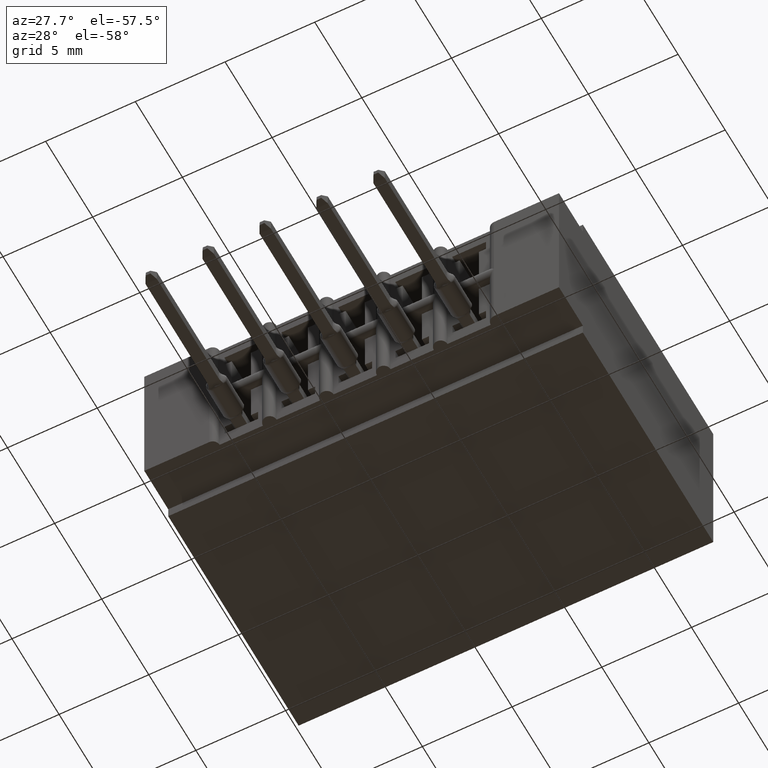
[diagram: clean part render]
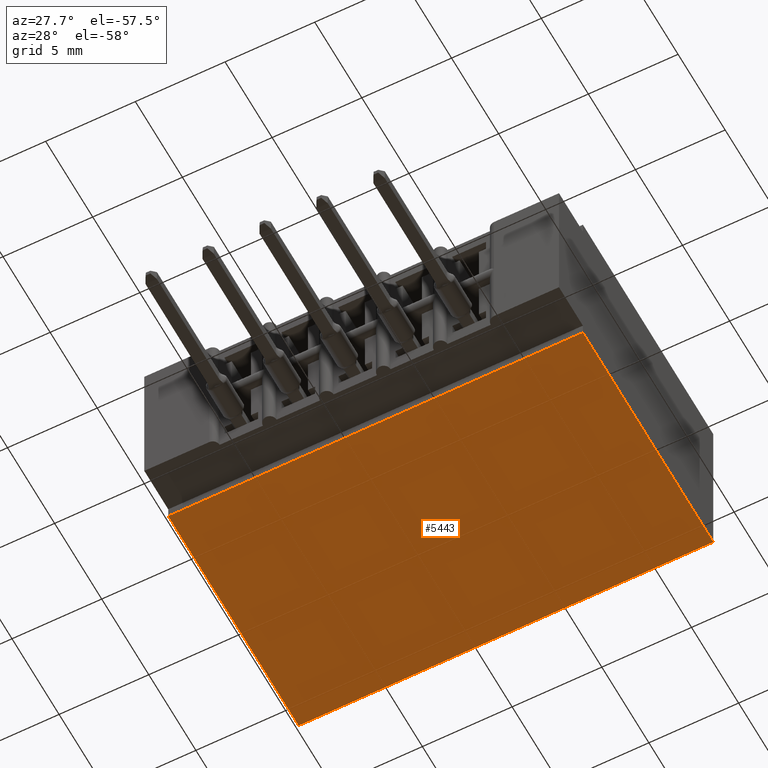
[diagram: same view with one face highlighted and labeled with its STEP entity id]
A machine part, auxiliary view. The second image highlights one B-rep face of the part: STEP entity #5443.
In plain terms, the highlighted planar face has unit normal (0, 0, 1).
Its self-contained STEP definition (entity closure, byte-faithful):
#358 = LINE ( 'NONE', #3531, #3460 ) ;
#1164 = DIRECTION ( 'NONE',  ( 1.000000000000000000, 0.0000000000000000000, -0.0000000000000000000 ) ) ;
#1405 = EDGE_CURVE ( 'NONE', #10196, #4060, #4864, .T. ) ;
#1605 = VECTOR ( 'NONE', #7922, 39.37007874015748143 ) ;
#2021 = CARTESIAN_POINT ( 'NONE',  ( 0.9099999999999998090, 0.1000000000000000056, -0.3900000000000000133 ) ) ;
#2845 = DIRECTION ( 'NONE',  ( -0.0000000000000000000, -1.000000000000000000, -0.0000000000000000000 ) ) ;
#2903 = AXIS2_PLACEMENT_3D ( 'NONE', #8140, #10217, #1164 ) ;
#2972 = CARTESIAN_POINT ( 'NONE',  ( 0.9099999999999998090, 0.6449999999999999067, -0.3900000000000000133 ) ) ;
#3024 = EDGE_LOOP ( 'NONE', ( #9175, #5678, #11346, #9019 ) ) ;
#3295 = PLANE ( 'NONE',  #2903 ) ;
#3460 = VECTOR ( 'NONE', #4312, 39.37007874015748143 ) ;
#3531 = CARTESIAN_POINT ( 'NONE',  ( 0.9099999999999998090, 0.1000000000000000056, -0.3900000000000000133 ) ) ;
#3811 = VERTEX_POINT ( 'NONE', #2021 ) ;
#4006 = LINE ( 'NONE', #2972, #12815 ) ;
#4060 = VERTEX_POINT ( 'NONE', #11372 ) ;
#4188 = LINE ( 'NONE', #7144, #1605 ) ;
#4236 = CARTESIAN_POINT ( 'NONE',  ( 0.9099999999999998090, 0.6449999999999999067, -0.3900000000000000133 ) ) ;
#4312 = DIRECTION ( 'NONE',  ( -1.000000000000000000, -0.0000000000000000000, -0.0000000000000000000 ) ) ;
#4439 = VECTOR ( 'NONE', #8803, 39.37007874015748143 ) ;
#4864 = LINE ( 'NONE', #6858, #4439 ) ;
#5255 = EDGE_CURVE ( 'NONE', #10196, #3811, #4006, .T. ) ;
#5443 = ADVANCED_FACE ( 'NONE', ( #7219 ), #3295, .F. ) ;
#5678 = ORIENTED_EDGE ( 'NONE', *, *, #10947, .T. ) ;
#6858 = CARTESIAN_POINT ( 'NONE',  ( 0.0000000000000000000, 0.6449999999999999067, -0.3900000000000000133 ) ) ;
#7144 = CARTESIAN_POINT ( 'NONE',  ( 0.0000000000000000000, 0.6449999999999999067, -0.3900000000000000133 ) ) ;
#7219 = FACE_OUTER_BOUND ( 'NONE', #3024, .T. ) ;
#7922 = DIRECTION ( 'NONE',  ( -0.0000000000000000000, -1.000000000000000000, -0.0000000000000000000 ) ) ;
#8140 = CARTESIAN_POINT ( 'NONE',  ( 0.0000000000000000000, 0.6449999999999999067, -0.3900000000000000133 ) ) ;
#8803 = DIRECTION ( 'NONE',  ( -1.000000000000000000, -0.0000000000000000000, -0.0000000000000000000 ) ) ;
#9019 = ORIENTED_EDGE ( 'NONE', *, *, #1405, .F. ) ;
#9175 = ORIENTED_EDGE ( 'NONE', *, *, #5255, .T. ) ;
#10196 = VERTEX_POINT ( 'NONE', #4236 ) ;
#10217 = DIRECTION ( 'NONE',  ( 0.0000000000000000000, 0.0000000000000000000, 1.000000000000000000 ) ) ;
#10823 = EDGE_CURVE ( 'NONE', #4060, #11754, #4188, .T. ) ;
#10947 = EDGE_CURVE ( 'NONE', #3811, #11754, #358, .T. ) ;
#11346 = ORIENTED_EDGE ( 'NONE', *, *, #10823, .F. ) ;
#11372 = CARTESIAN_POINT ( 'NONE',  ( 0.0000000000000000000, 0.6449999999999999067, -0.3900000000000000133 ) ) ;
#11376 = CARTESIAN_POINT ( 'NONE',  ( 0.0000000000000000000, 0.1000000000000000056, -0.3900000000000000133 ) ) ;
#11754 = VERTEX_POINT ( 'NONE', #11376 ) ;
#12815 = VECTOR ( 'NONE', #2845, 39.37007874015748143 ) ;